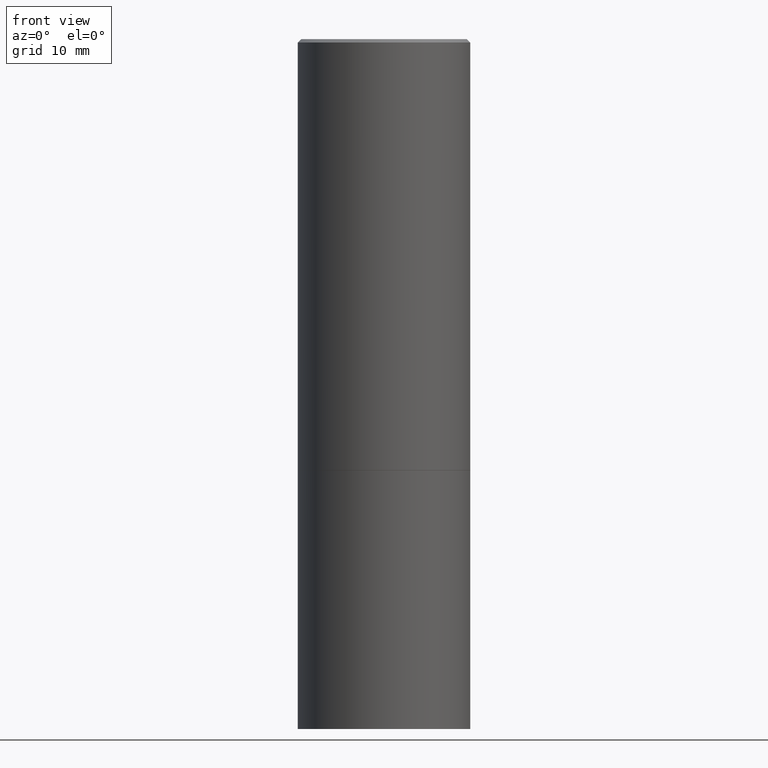
[diagram: clean part render]
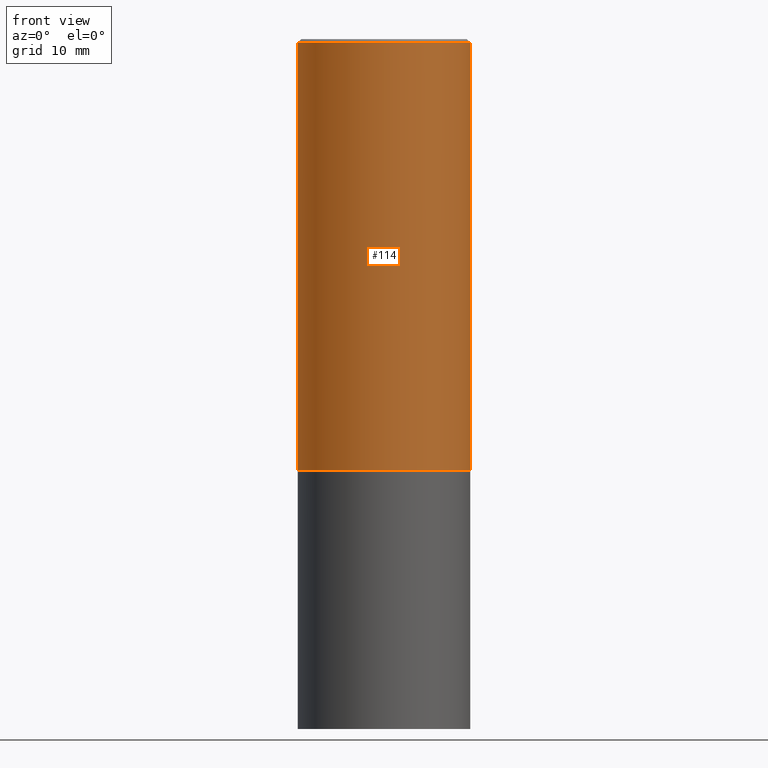
[diagram: same view with one face highlighted and labeled with its STEP entity id]
A machine part, front view. The second image highlights one B-rep face of the part: STEP entity #114.
In plain terms, the highlighted cylindrical surface (partial cylindrical patch) has radius 12.7 mm, axis along (-0, 0, 1).
Its self-contained STEP definition (entity closure, byte-faithful):
#12 = AXIS2_PLACEMENT_3D ( 'NONE', #40, #98, #277 ) ;
#16 = DIRECTION ( 'NONE',  ( -2.445468806185136597E-29, 3.491481338843145583E-15, 1.000000000000000000 ) ) ;
#17 = CARTESIAN_POINT ( 'NONE',  ( 0.000000000000000000, 0.000000000000000000, 0.000000000000000000 ) ) ;
#25 = ORIENTED_EDGE ( 'NONE', *, *, #152, .T. ) ;
#28 = CARTESIAN_POINT ( 'NONE',  ( 0.5000000000000000000, -1.221669320461215371E-14, -2.499000000000000110 ) ) ;
#31 = CARTESIAN_POINT ( 'NONE',  ( -0.4999999999999996114, 3.421651712066267296E-15, -0.02000000000000009409 ) ) ;
#38 = LINE ( 'NONE', #214, #59 ) ;
#40 = CARTESIAN_POINT ( 'NONE',  ( 4.890937612370296805E-31, -6.982962677686323656E-17, -0.02000000000000009409 ) ) ;
#42 = DIRECTION ( 'NONE',  ( 1.000000000000000000, -6.982962677686266711E-15, 4.876176775795935793E-29 ) ) ;
#52 = CIRCLE ( 'NONE', #169, 0.5000000000000000000 ) ;
#57 = LINE ( 'NONE', #167, #288 ) ;
#59 = VECTOR ( 'NONE', #265, 39.37007874015748143 ) ;
#60 = VERTEX_POINT ( 'NONE', #28 ) ;
#65 = DIRECTION ( 'NONE',  ( 1.000000000000000000, -6.982962677686265133E-15, 0.000000000000000000 ) ) ;
#66 = CIRCLE ( 'NONE', #12, 0.4999999999999996114 ) ;
#98 = DIRECTION ( 'NONE',  ( -2.445468806185136597E-29, 3.491481338843145583E-15, 1.000000000000000000 ) ) ;
#114 = ADVANCED_FACE ( 'NONE', ( #181 ), #188, .T. ) ;
#143 = DIRECTION ( 'NONE',  ( -2.445468806185136877E-29, 3.491481338843145188E-15, 1.000000000000000000 ) ) ;
#147 = CARTESIAN_POINT ( 'NONE',  ( 6.111226546656657010E-29, -8.725211865769021935E-15, -2.499000000000000110 ) ) ;
#150 = ORIENTED_EDGE ( 'NONE', *, *, #210, .F. ) ;
#152 = EDGE_CURVE ( 'NONE', #60, #366, #57, .T. ) ;
#164 = ORIENTED_EDGE ( 'NONE', *, *, #220, .T. ) ;
#167 = CARTESIAN_POINT ( 'NONE',  ( 0.4999999999999997780, -3.491481338843131778E-15, 2.438088387897966775E-29 ) ) ;
#168 = AXIS2_PLACEMENT_3D ( 'NONE', #17, #249, #42 ) ;
#169 = AXIS2_PLACEMENT_3D ( 'NONE', #147, #16, #65 ) ;
#181 = FACE_OUTER_BOUND ( 'NONE', #260, .T. ) ;
#188 = CYLINDRICAL_SURFACE ( 'NONE', #168, 0.4999999999999997780 ) ;
#210 = EDGE_CURVE ( 'NONE', #259, #366, #66, .T. ) ;
#214 = CARTESIAN_POINT ( 'NONE',  ( -0.4999999999999997780, 3.552713678800499352E-15, -2.459467545127452050E-29 ) ) ;
#216 = CARTESIAN_POINT ( 'NONE',  ( -0.5000000000000000000, -8.448070674724393209E-16, -2.499000000000000110 ) ) ;
#220 = EDGE_CURVE ( 'NONE', #314, #60, #52, .T. ) ;
#227 = ORIENTED_EDGE ( 'NONE', *, *, #252, .F. ) ;
#249 = DIRECTION ( 'NONE',  ( -2.445468806185136597E-29, 3.491481338843145583E-15, 1.000000000000000000 ) ) ;
#252 = EDGE_CURVE ( 'NONE', #314, #259, #38, .T. ) ;
#253 = CARTESIAN_POINT ( 'NONE',  ( 0.4999999999999996114, -3.500078625662626318E-15, -0.02000000000000009409 ) ) ;
#259 = VERTEX_POINT ( 'NONE', #31 ) ;
#260 = EDGE_LOOP ( 'NONE', ( #227, #164, #25, #150 ) ) ;
#265 = DIRECTION ( 'NONE',  ( -2.445468806185136877E-29, 3.491481338843145188E-15, 1.000000000000000000 ) ) ;
#277 = DIRECTION ( 'NONE',  ( 1.000000000000000000, -6.982962677686266711E-15, 0.000000000000000000 ) ) ;
#288 = VECTOR ( 'NONE', #143, 39.37007874015748143 ) ;
#314 = VERTEX_POINT ( 'NONE', #216 ) ;
#366 = VERTEX_POINT ( 'NONE', #253 ) ;